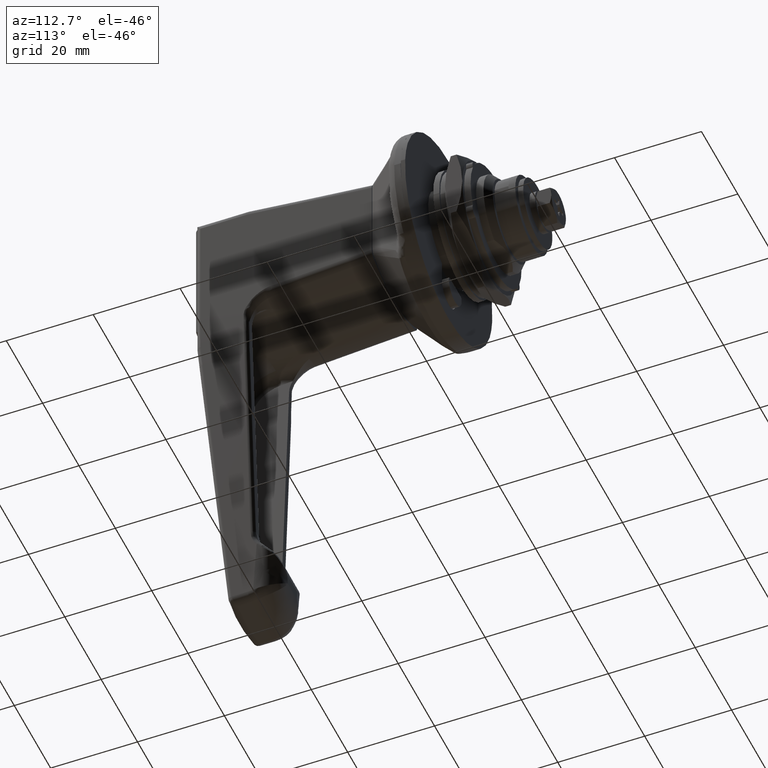
[diagram: clean part render]
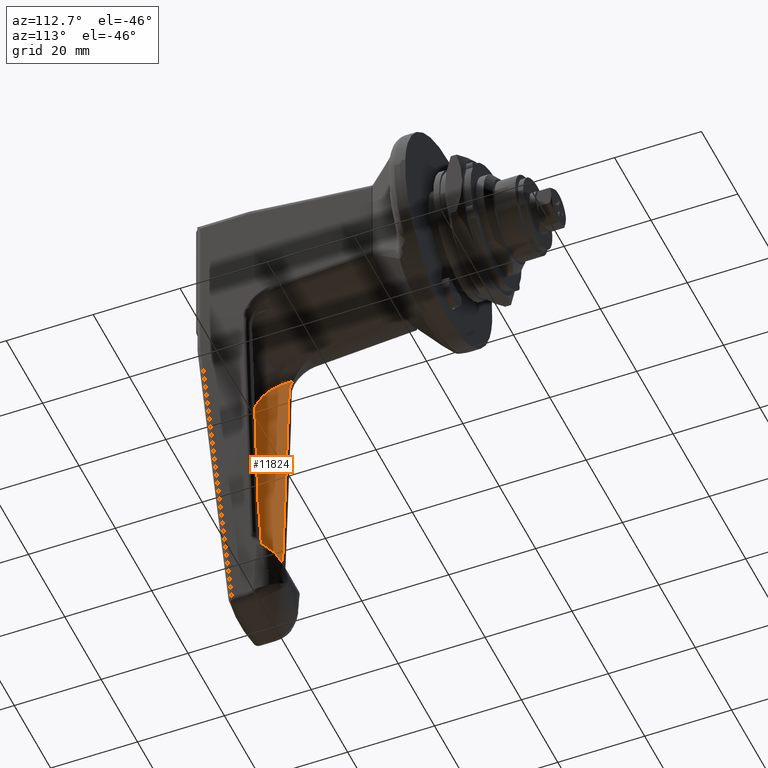
[diagram: same view with one face highlighted and labeled with its STEP entity id]
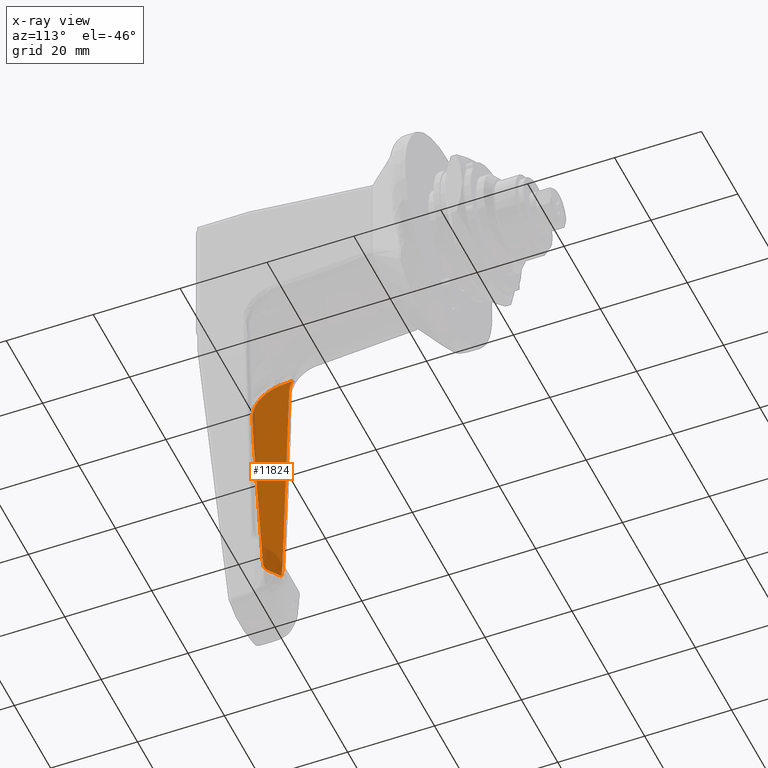
[diagram: x-ray of the same camera — body ghosted, the highlighted face saturated]
A machine part, auxiliary view. The second image highlights one B-rep face of the part: STEP entity #11824.
The next image is the same camera in x-ray: the body ghosted, the highlighted face saturated — about 10% of this face is hidden behind the body in this view.
In plain terms, the highlighted face is a freeform B-spline surface patch.
Its self-contained STEP definition (entity closure, byte-faithful):
#9643=CARTESIAN_POINT('',(-40.238236985568399,10.420946354432459,-17.012221978190752));
#9644=VERTEX_POINT('',#9643);
#9683=CARTESIAN_POINT('',(-41.0,10.215993534322040,-20.146701618263052));
#9684=VERTEX_POINT('',#9683);
#9685=CARTESIAN_POINT('',(-41.0,10.215993534322040,-20.146701618262998));
#9686=CARTESIAN_POINT('',(-41.0,10.233863486489080,-19.873404567719941));
#9687=CARTESIAN_POINT('',(-40.983595571781557,10.251551684304260,-19.602887207231170));
#9688=CARTESIAN_POINT('',(-40.919427745951772,10.286580635385700,-19.067166186565309));
#9689=CARTESIAN_POINT('',(-40.871659786545038,10.303921338109220,-18.801963299373199));
#9690=CARTESIAN_POINT('',(-40.776404415901432,10.329670875831670,-18.408158512062482));
#9691=CARTESIAN_POINT('',(-40.740707139031237,10.338210340694840,-18.277558802644940));
#9692=CARTESIAN_POINT('',(-40.661262284384037,10.355200076381321,-18.017723487518129));
#9693=CARTESIAN_POINT('',(-40.617393850594517,10.363670441497980,-17.888180566431060));
#9694=CARTESIAN_POINT('',(-40.474372414603117,10.388764170302659,-17.504405500591879));
#9695=CARTESIAN_POINT('',(-40.363968336849837,10.405070484383611,-17.255022206115100));
#9696=CARTESIAN_POINT('',(-40.238236985568399,10.420946354432459,-17.012221978190698));
#9697=B_SPLINE_CURVE_WITH_KNOTS('',3,(#9685,#9686,#9687,#9688,#9689,#9690,#9691,#9692,#9693,#9694,#9695,#9696),.UNSPECIFIED.,.F.,.U.,(4,2,2,2,2,4),(0.0,0.250000000000000,0.500000000000001,0.624999999999999,0.749999999999998,1.0),.UNSPECIFIED.);
#9698=EDGE_CURVE('',#9684,#9644,#9697,.T.);
#11040=CARTESIAN_POINT('',(-44.384166016320712,6.503920524452701,-76.917900305032092));
#11041=VERTEX_POINT('',#11040);
#11057=CARTESIAN_POINT('',(-45.543004828951801,6.668008507093960,-74.408393773271911));
#11058=VERTEX_POINT('',#11057);
#11059=CARTESIAN_POINT('',(-44.384166016320712,6.503920524452791,-76.917900305032120));
#11060=CARTESIAN_POINT('',(-45.425579747758100,6.572014978929710,-75.876486573594661));
#11061=CARTESIAN_POINT('',(-45.543004828951780,6.668008507094051,-74.408393773271911));
#11069=(BOUNDED_CURVE()B_SPLINE_CURVE(2,(#11059,#11060,#11061),.UNSPECIFIED.,.F.,.U.)CURVE()GEOMETRIC_REPRESENTATION_ITEM()QUASI_UNIFORM_CURVE()RATIONAL_B_SPLINE_CURVE((1.0,0.938411803039720,1.0))REPRESENTATION_ITEM(''));
#11070=EDGE_CURVE('',#11041,#11058,#11069,.T.);
#11126=CARTESIAN_POINT('',(-48.877622741752099,9.394016808543810,-32.717737772722302));
#11127=VERTEX_POINT('',#11126);
#11128=CARTESIAN_POINT('',(-45.543004828951801,6.668008507093960,-74.408393773271911));
#11129=CARTESIAN_POINT('',(-48.877622741752099,9.394016808543810,-32.717737772722302));
#11130=QUASI_UNIFORM_CURVE('',1,(#11128,#11129),.UNSPECIFIED.,.F.,.U.);
#11131=EDGE_CURVE('',#11058,#11127,#11130,.T.);
#11178=CARTESIAN_POINT('',(-49.350375615767298,9.913184262216060,-24.777764990460650));
#11179=VERTEX_POINT('',#11178);
#11207=CARTESIAN_POINT('',(-48.877622741752077,9.394016808543871,-32.717737772722323));
#11208=CARTESIAN_POINT('',(-49.194776529498746,9.653286055246786,-28.752560935196176));
#11209=CARTESIAN_POINT('',(-49.350375615767241,9.913184262216122,-24.777764990460660));
#11217=(BOUNDED_CURVE()B_SPLINE_CURVE(2,(#11207,#11208,#11209),.UNSPECIFIED.,.F.,.U.)CURVE()GEOMETRIC_REPRESENTATION_ITEM()QUASI_UNIFORM_CURVE()RATIONAL_B_SPLINE_CURVE((1.0,0.999793063853632,1.0))REPRESENTATION_ITEM(''));
#11218=EDGE_CURVE('',#11127,#11179,#11217,.T.);
#11373=CARTESIAN_POINT('',(-42.881195931486751,10.407766641232181,-17.213788088215701));
#11374=VERTEX_POINT('',#11373);
#11432=CARTESIAN_POINT('',(-49.350375615767298,9.913184262216060,-24.777764990460650));
#11433=CARTESIAN_POINT('',(-49.368430591960603,9.943341611156244,-24.316548617830790));
#11434=CARTESIAN_POINT('',(-49.343996788663588,9.973138101100894,-23.860851101559248));
#11435=CARTESIAN_POINT('',(-49.246539025863861,10.017316399111900,-23.185203039854080));
#11436=CARTESIAN_POINT('',(-49.203847842382871,10.031955824723831,-22.961312578145598));
#11437=CARTESIAN_POINT('',(-49.124243942220978,10.053782750893310,-22.627498895334359));
#11438=CARTESIAN_POINT('',(-49.095110482276169,10.061036321006281,-22.516565228626529));
#11439=CARTESIAN_POINT('',(-49.031547733190671,10.075498483531600,-22.295385769067959));
#11440=CARTESIAN_POINT('',(-48.997067637580372,10.082713895116999,-22.185035686073238));
#11441=CARTESIAN_POINT('',(-48.813139426031157,10.118307596766160,-21.640677559778400));
#11442=CARTESIAN_POINT('',(-48.628260303076893,10.145538895984560,-21.224211209489219));
#11443=CARTESIAN_POINT('',(-48.295183835539333,10.184548267321560,-20.627614977429602));
#11444=CARTESIAN_POINT('',(-48.174802765474197,10.197243064551509,-20.433465009496992));
#11445=CARTESIAN_POINT('',(-47.979708797919017,10.215806655170830,-20.149559685278589));
#11446=CARTESIAN_POINT('',(-47.912094817413902,10.221928039835911,-20.055941282802252));
#11447=CARTESIAN_POINT('',(-47.772634248244017,10.233942033221719,-19.872203300355881));
#11448=CARTESIAN_POINT('',(-47.701002130130668,10.239817645400480,-19.782343659793838));
#11449=CARTESIAN_POINT('',(-47.333465019710317,10.268547947441130,-19.342952063469109));
#11450=CARTESIAN_POINT('',(-47.009694718501173,10.289477615992389,-19.022860737513771));
#11451=CARTESIAN_POINT('',(-46.478754336461293,10.317743696448609,-18.590568790289151));
#11452=CARTESIAN_POINT('',(-46.294176077330462,10.326640820936040,-18.454499154623630));
#11453=CARTESIAN_POINT('',(-46.005314679418838,10.339157924592060,-18.263066772569339));
#11454=CARTESIAN_POINT('',(-45.907437228544197,10.343173024537730,-18.201661181634961));
#11455=CARTESIAN_POINT('',(-45.709802250388293,10.350839256078819,-18.084416409551721));
#11456=CARTESIAN_POINT('',(-45.609851845131473,10.354498820659950,-18.028448257150270));
#11457=CARTESIAN_POINT('',(-45.104487234957602,10.371936853028510,-17.761756843034728));
#11458=CARTESIAN_POINT('',(-44.682396230765882,10.383160605468101,-17.590104540382079));
#11459=CARTESIAN_POINT('',(-44.131757767546880,10.393663145880060,-17.429482212411141));
#11460=CARTESIAN_POINT('',(-44.020468586063487,10.395585725733181,-17.400078921435291));
#11461=CARTESIAN_POINT('',(-43.795504262273987,10.399065380606460,-17.346862247720271));
#11462=CARTESIAN_POINT('',(-43.682116774373320,10.400617216928270,-17.323128983875399));
#11463=CARTESIAN_POINT('',(-43.341181911593210,10.404681253769169,-17.260974968490540));
#11464=CARTESIAN_POINT('',(-43.112096367980662,10.406615606142370,-17.231391632543971));
#11465=CARTESIAN_POINT('',(-42.881195931486751,10.407766641232181,-17.213788088215750));
#11466=B_SPLINE_CURVE_WITH_KNOTS('',3,(#11432,#11433,#11434,#11435,#11436,#11437,#11438,#11439,#11440,#11441,#11442,#11443,#11444,#11445,#11446,#11447,#11448,#11449,#11450,#11451,#11452,#11453,#11454,#11455,#11456,#11457,#11458,#11459,#11460,#11461,#11462,#11463,#11464,#11465),.UNSPECIFIED.,.F.,.U.,(4,2,2,2,2,2,2,2,2,2,2,2,2,2,2,2,4),(0.0,0.125000000000003,0.187500000000004,0.218750000000006,0.250000000000007,0.375000000000010,0.437500000000012,0.468750000000012,0.500000000000013,0.625000000000015,0.687500000000015,0.718750000000014,0.750000000000014,0.875000000000008,0.906250000000006,0.937500000000005,1.0),.UNSPECIFIED.);
#11467=EDGE_CURVE('',#11179,#11374,#11466,.T.);
#11697=CARTESIAN_POINT('',(-41.0,6.282641572788980,-80.302066321352697));
#11698=VERTEX_POINT('',#11697);
#11699=CARTESIAN_POINT('',(-41.0,6.282641572788980,-80.302066321352697));
#11700=CARTESIAN_POINT('',(-44.384166016320712,6.503920524452701,-76.917900305032092));
#11701=QUASI_UNIFORM_CURVE('',1,(#11699,#11700),.UNSPECIFIED.,.F.,.U.);
#11702=EDGE_CURVE('',#11698,#11041,#11701,.T.);
#11794=CARTESIAN_POINT('',(-42.881195931486751,10.407766641232181,-17.213788088215701));
#11795=CARTESIAN_POINT('',(-42.000207826786323,10.412158353251501,-17.146622718633569));
#11796=CARTESIAN_POINT('',(-41.119221499545127,10.416551580808569,-17.079434170925659));
#11797=CARTESIAN_POINT('',(-40.238236985568399,10.420946354432470,-17.012221978190752));
#11798=QUASI_UNIFORM_CURVE('',3,(#11794,#11795,#11796,#11797),.UNSPECIFIED.,.F.,.U.);
#11799=EDGE_CURVE('',#11374,#9644,#11798,.T.);
#11805=CARTESIAN_POINT('',(-49.811231045075758,6.075933490051391,-83.463390358906977));
#11806=CARTESIAN_POINT('',(-49.811231045075758,10.627654770164011,-13.850892847938731));
#11807=CARTESIAN_POINT('',(-39.782812702301392,6.075933490051391,-83.463390358906977));
#11808=CARTESIAN_POINT('',(-39.782812702301392,10.627654770164011,-13.850892847938731));
#11809=B_SPLINE_SURFACE_WITH_KNOTS('',1,1,((#11805,#11807),(#11806,#11808)),.UNSPECIFIED.,.F.,.F.,.U.,(2,2),(2,2),(0.0,69.761149476814026),(0.0,10.028418342774369),.UNSPECIFIED.);
#11810=ORIENTED_EDGE('',*,*,#11799,.F.);
#11811=ORIENTED_EDGE('',*,*,#11467,.F.);
#11812=ORIENTED_EDGE('',*,*,#11218,.F.);
#11813=ORIENTED_EDGE('',*,*,#11131,.F.);
#11814=ORIENTED_EDGE('',*,*,#11070,.F.);
#11815=ORIENTED_EDGE('',*,*,#11702,.F.);
#11816=CARTESIAN_POINT('',(-41.0,10.215993534322040,-20.146701618263052));
#11817=CARTESIAN_POINT('',(-41.0,6.282641572788980,-80.302066321352697));
#11818=QUASI_UNIFORM_CURVE('',1,(#11816,#11817),.UNSPECIFIED.,.F.,.U.);
#11819=EDGE_CURVE('',#9684,#11698,#11818,.T.);
#11820=ORIENTED_EDGE('',*,*,#11819,.F.);
#11821=ORIENTED_EDGE('',*,*,#9698,.T.);
#11822=EDGE_LOOP('',(#11810,#11811,#11812,#11813,#11814,#11815,#11820,#11821));
#11823=FACE_OUTER_BOUND('',#11822,.T.);
#11824=ADVANCED_FACE('',(#11823),#11809,.F.);